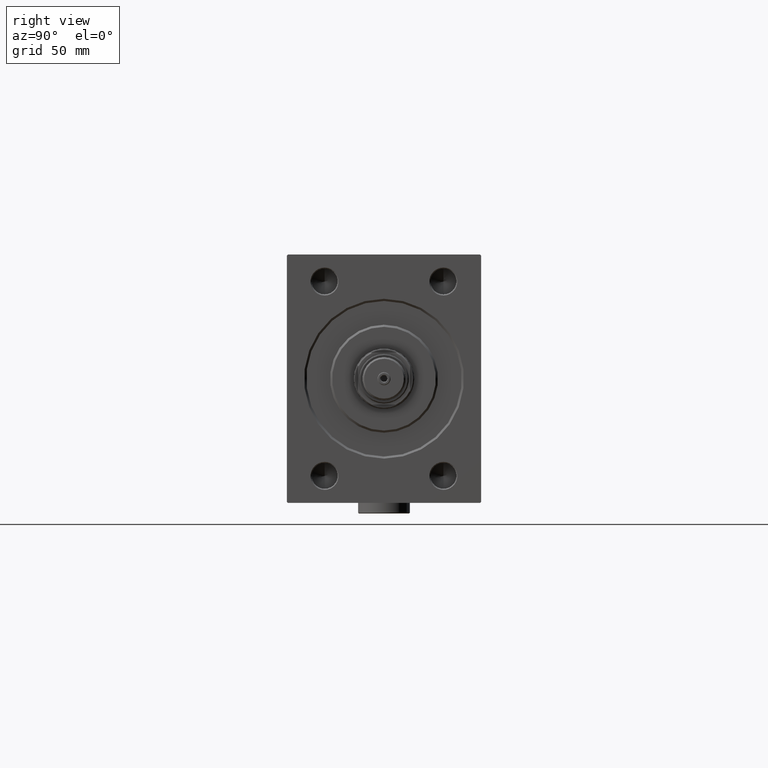
[diagram: clean part render]
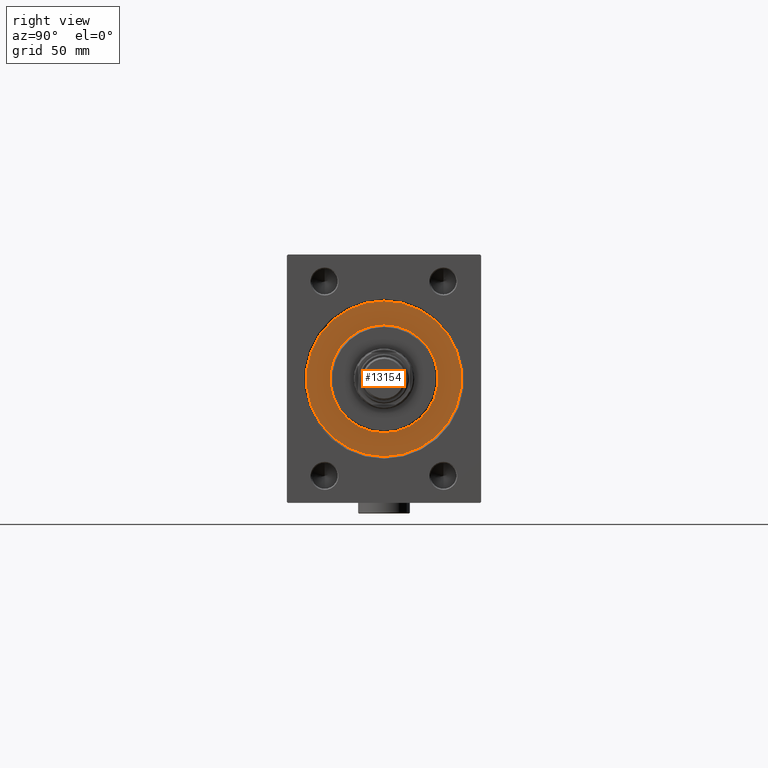
[diagram: same view with one face highlighted and labeled with its STEP entity id]
A machine part, right view. The second image highlights one B-rep face of the part: STEP entity #13154.
In plain terms, the highlighted planar face has unit normal (-1, 0, 0).
Its self-contained STEP definition (entity closure, byte-faithful):
#854 = DIRECTION ( 'NONE',  ( 1.000000000000000000, -0.000000000000000000, 0.000000000000000000 ) ) ;
#1047 = CIRCLE ( 'NONE', #10497, 36.00000000000000000 ) ;
#3427 = EDGE_CURVE ( 'NONE', #47775, #21822, #12279, .T. ) ;
#4217 = CIRCLE ( 'NONE', #11320, 25.00000000000000000 ) ;
#4645 = CIRCLE ( 'NONE', #27495, 25.00000000000000000 ) ;
#5294 = CARTESIAN_POINT ( 'NONE',  ( 0.000000000000000000, 0.000000000000000000, 0.000000000000000000 ) ) ;
#6482 = CARTESIAN_POINT ( 'NONE',  ( 0.000000000000000000, 3.061616997868383043E-15, -25.00000000000000000 ) ) ;
#7119 = DIRECTION ( 'NONE',  ( 0.000000000000000000, 0.000000000000000000, 1.000000000000000000 ) ) ;
#8369 = DIRECTION ( 'NONE',  ( 0.000000000000000000, 0.000000000000000000, 1.000000000000000000 ) ) ;
#10497 = AXIS2_PLACEMENT_3D ( 'NONE', #23845, #16427, #31008 ) ;
#11320 = AXIS2_PLACEMENT_3D ( 'NONE', #34831, #39028, #35319 ) ;
#11330 = DIRECTION ( 'NONE',  ( -1.000000000000000000, 0.000000000000000000, 0.000000000000000000 ) ) ;
#12279 = CIRCLE ( 'NONE', #32765, 36.00000000000000000 ) ;
#13154 = ADVANCED_FACE ( 'NONE', ( #42910, #44120 ), #33257, .F. ) ;
#16047 = CARTESIAN_POINT ( 'NONE',  ( 0.000000000000000000, 0.000000000000000000, -36.00000000000000000 ) ) ;
#16427 = DIRECTION ( 'NONE',  ( -1.000000000000000000, 0.000000000000000000, 0.000000000000000000 ) ) ;
#20707 = ORIENTED_EDGE ( 'NONE', *, *, #3427, .F. ) ;
#21822 = VERTEX_POINT ( 'NONE', #16047 ) ;
#22539 = VERTEX_POINT ( 'NONE', #6482 ) ;
#23159 = CARTESIAN_POINT ( 'NONE',  ( 0.000000000000000000, 0.000000000000000000, 0.000000000000000000 ) ) ;
#23845 = CARTESIAN_POINT ( 'NONE',  ( 0.000000000000000000, 0.000000000000000000, 0.000000000000000000 ) ) ;
#25344 = EDGE_LOOP ( 'NONE', ( #25450, #47675 ) ) ;
#25450 = ORIENTED_EDGE ( 'NONE', *, *, #29264, .F. ) ;
#25612 = EDGE_CURVE ( 'NONE', #21822, #47775, #1047, .T. ) ;
#27495 = AXIS2_PLACEMENT_3D ( 'NONE', #5294, #854, #38599 ) ;
#29264 = EDGE_CURVE ( 'NONE', #31418, #22539, #4217, .T. ) ;
#31008 = DIRECTION ( 'NONE',  ( 0.000000000000000000, 0.000000000000000000, 1.000000000000000000 ) ) ;
#31418 = VERTEX_POINT ( 'NONE', #35884 ) ;
#32765 = AXIS2_PLACEMENT_3D ( 'NONE', #23159, #11330, #8369 ) ;
#33257 = PLANE ( 'NONE',  #43322 ) ;
#34831 = CARTESIAN_POINT ( 'NONE',  ( 0.000000000000000000, 0.000000000000000000, 0.000000000000000000 ) ) ;
#35319 = DIRECTION ( 'NONE',  ( 0.000000000000000000, 0.000000000000000000, -1.000000000000000000 ) ) ;
#35884 = CARTESIAN_POINT ( 'NONE',  ( 0.000000000000000000, 0.000000000000000000, 25.00000000000000000 ) ) ;
#37599 = ORIENTED_EDGE ( 'NONE', *, *, #25612, .F. ) ;
#37921 = CARTESIAN_POINT ( 'NONE',  ( 0.000000000000000000, 4.408728476930470856E-15, 36.00000000000000000 ) ) ;
#38599 = DIRECTION ( 'NONE',  ( 0.000000000000000000, 0.000000000000000000, -1.000000000000000000 ) ) ;
#39028 = DIRECTION ( 'NONE',  ( 1.000000000000000000, -0.000000000000000000, 0.000000000000000000 ) ) ;
#41841 = EDGE_LOOP ( 'NONE', ( #37599, #20707 ) ) ;
#42910 = FACE_BOUND ( 'NONE', #25344, .T. ) ;
#43322 = AXIS2_PLACEMENT_3D ( 'NONE', #48057, #48294, #7119 ) ;
#44120 = FACE_OUTER_BOUND ( 'NONE', #41841, .T. ) ;
#47675 = ORIENTED_EDGE ( 'NONE', *, *, #48122, .F. ) ;
#47775 = VERTEX_POINT ( 'NONE', #37921 ) ;
#48057 = CARTESIAN_POINT ( 'NONE',  ( 0.000000000000000000, 0.000000000000000000, 0.000000000000000000 ) ) ;
#48122 = EDGE_CURVE ( 'NONE', #22539, #31418, #4645, .T. ) ;
#48294 = DIRECTION ( 'NONE',  ( -1.000000000000000000, 0.000000000000000000, 0.000000000000000000 ) ) ;